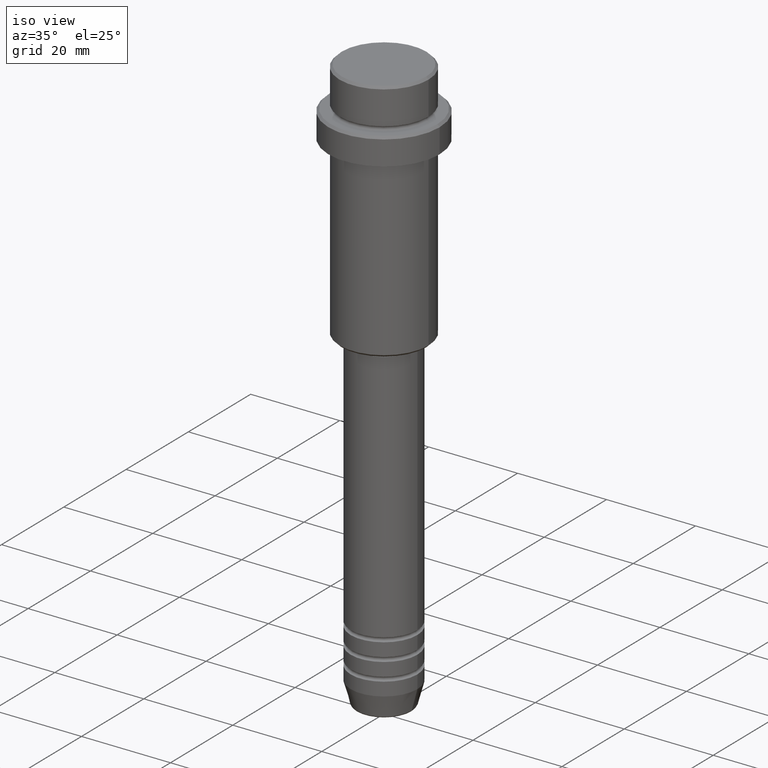
[diagram: clean part render]
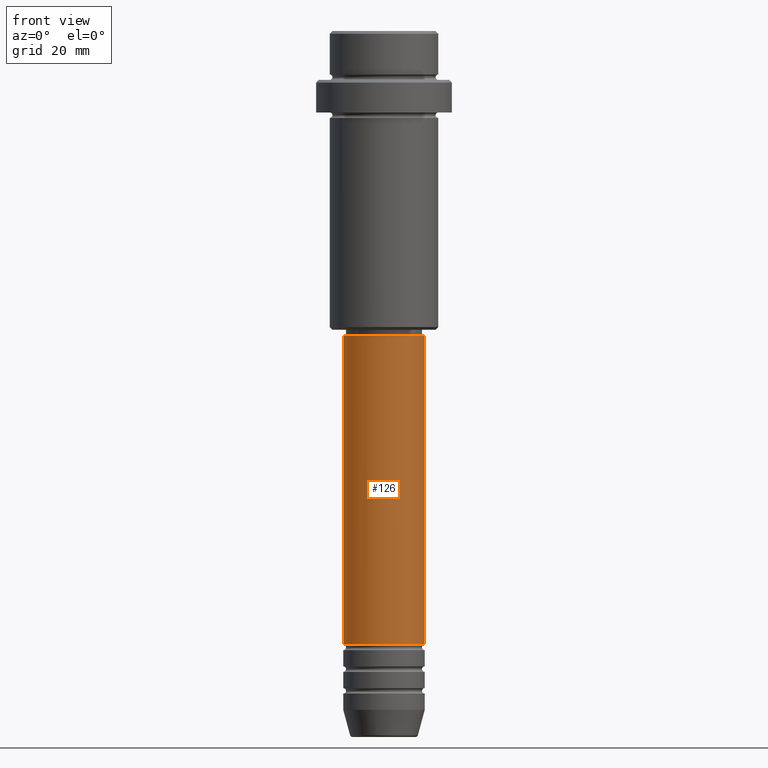
[diagram: tour spotlight — one face highlighted and labeled with its STEP entity id]
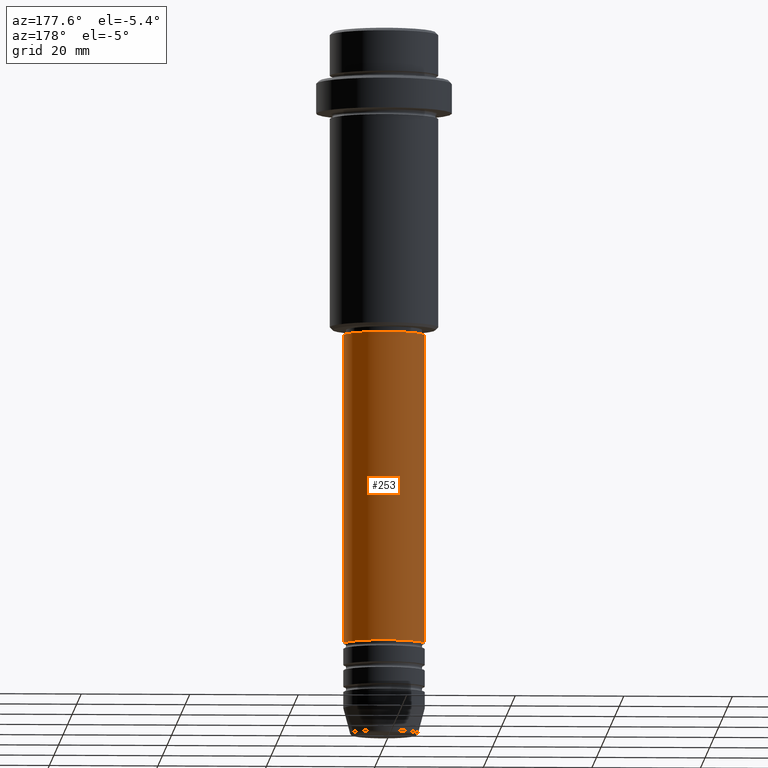
[diagram: tour spotlight — one face highlighted and labeled with its STEP entity id]
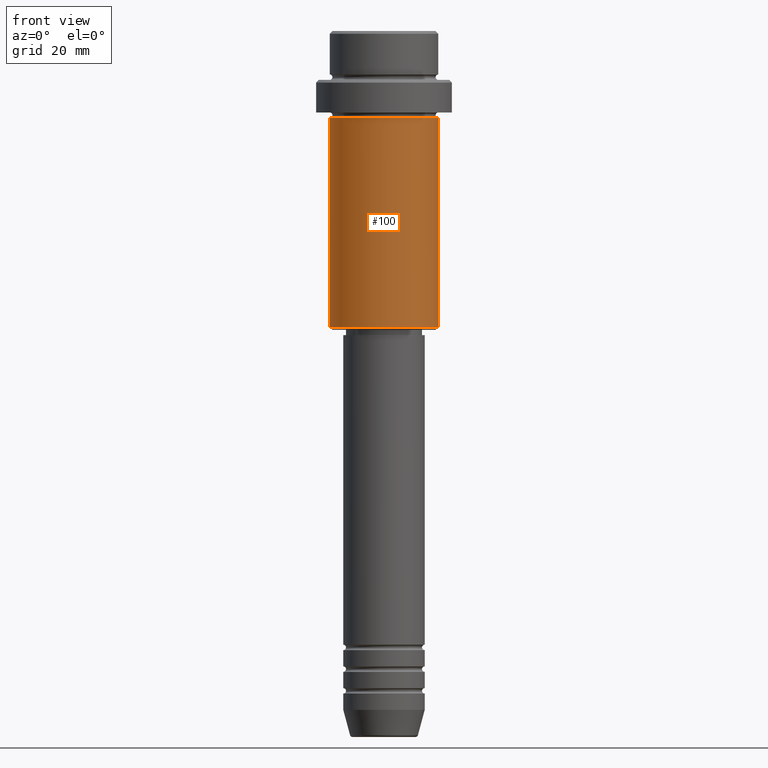
[diagram: tour spotlight — one face highlighted and labeled with its STEP entity id]
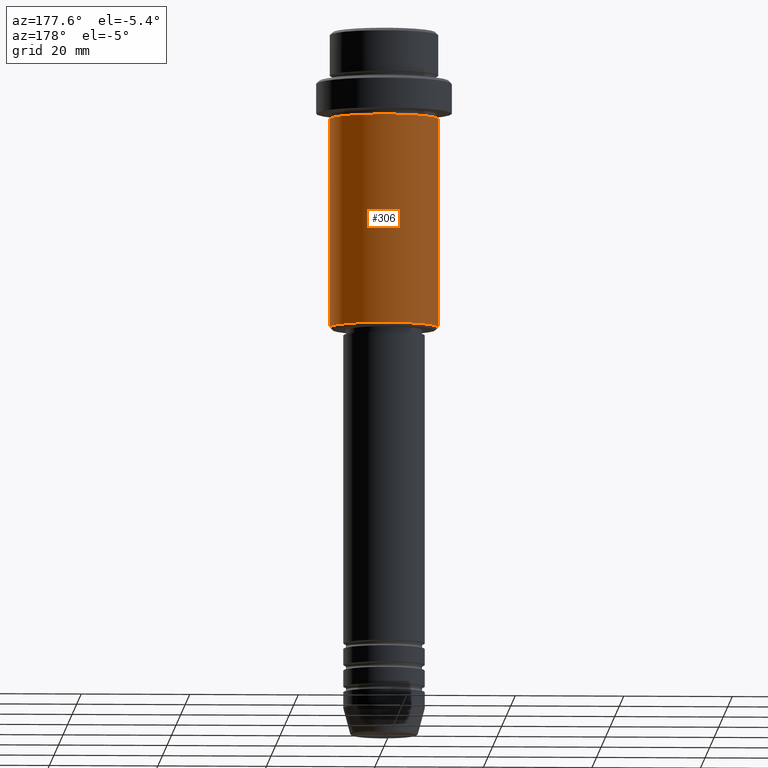
[diagram: tour spotlight — one face highlighted and labeled with its STEP entity id]
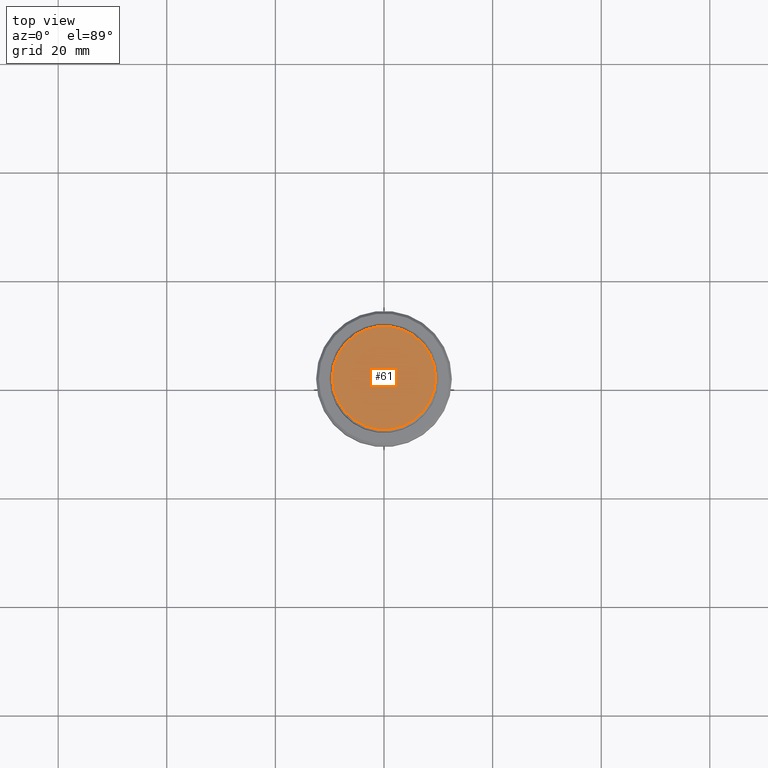
[diagram: tour spotlight — one face highlighted and labeled with its STEP entity id]
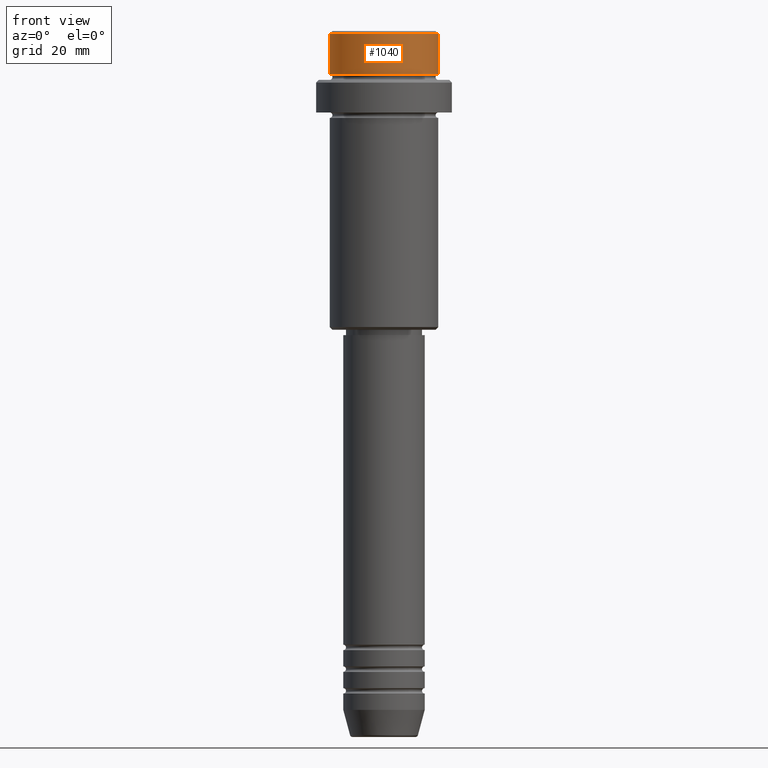
[diagram: tour spotlight — one face highlighted and labeled with its STEP entity id]
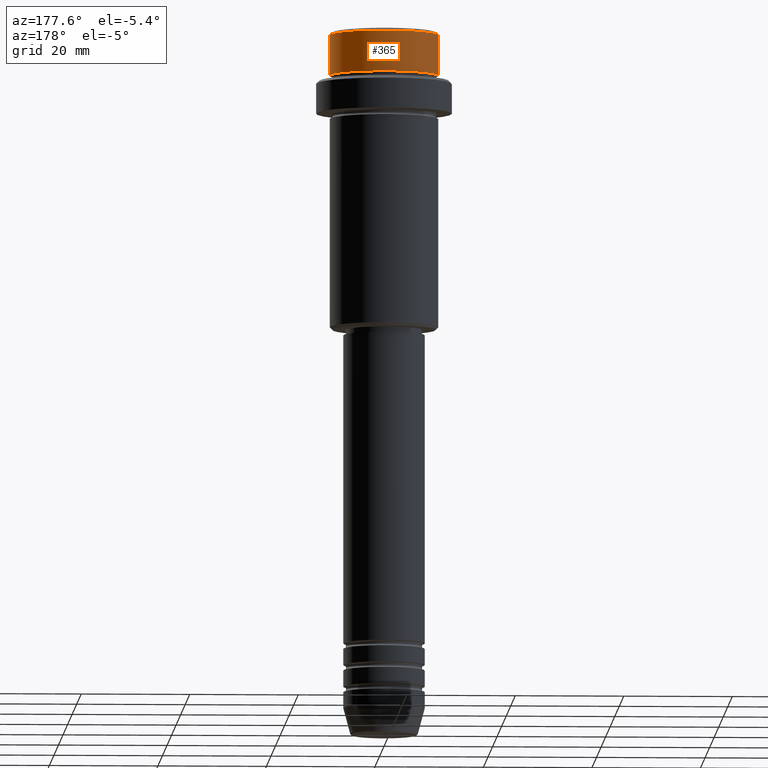
[diagram: tour spotlight — one face highlighted and labeled with its STEP entity id]
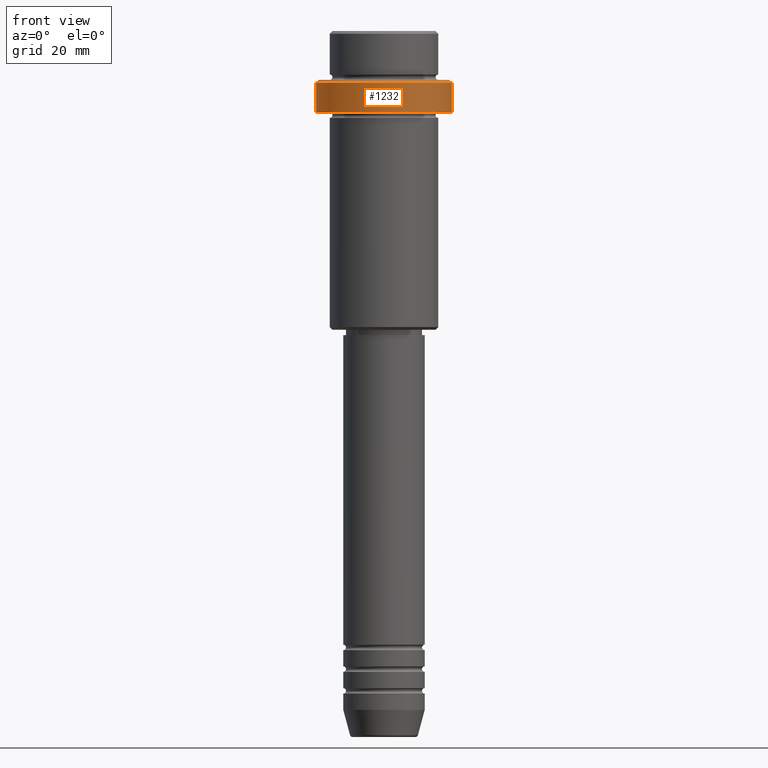
[diagram: tour spotlight — one face highlighted and labeled with its STEP entity id]
A machine part: a face-by-face anatomy tour. The part has 52 B-rep faces; the first image is the clean iso view, then the 8 largest visible faces are spotlighted one at a time (largest first), each with its STEP entity span.

Face 1 — front view, entity #126. In plain terms, the highlighted cylindrical surface (partial cylindrical patch) has radius 7.5 mm, axis along (-0, -0, 1).
Definition (entity closure, byte-faithful):
#10 = DIRECTION ( 'NONE',  ( -0.000000000000000000, -0.000000000000000000, 1.000000000000000000 ) ) ;
#51 = AXIS2_PLACEMENT_3D ( 'NONE', #596, #1247, #836 ) ;
#89 = LINE ( 'NONE', #432, #335 ) ;
#105 = DIRECTION ( 'NONE',  ( -0.000000000000000000, -0.000000000000000000, 1.000000000000000000 ) ) ;
#126 = ADVANCED_FACE ( 'NONE', ( #769 ), #662, .T. ) ;
#179 = VERTEX_POINT ( 'NONE', #968 ) ;
#219 = ORIENTED_EDGE ( 'NONE', *, *, #878, .F. ) ;
#248 = DIRECTION ( 'NONE',  ( -0.000000000000000000, -0.000000000000000000, 1.000000000000000000 ) ) ;
#308 = AXIS2_PLACEMENT_3D ( 'NONE', #1308, #10, #784 ) ;
#314 = CARTESIAN_POINT ( 'NONE',  ( 0.000000000000000000, 0.000000000000000000, 0.000000000000000000 ) ) ;
#335 = VECTOR ( 'NONE', #530, 1000.000000000000000 ) ;
#432 = CARTESIAN_POINT ( 'NONE',  ( -7.500000000000000000, 9.184850993605147944E-16, 0.000000000000000000 ) ) ;
#475 = ORIENTED_EDGE ( 'NONE', *, *, #1145, .T. ) ;
#482 = VERTEX_POINT ( 'NONE', #1190 ) ;
#488 = EDGE_CURVE ( 'NONE', #1399, #482, #89, .T. ) ;
#495 = CIRCLE ( 'NONE', #51, 7.500000000000000000 ) ;
#530 = DIRECTION ( 'NONE',  ( -0.000000000000000000, -0.000000000000000000, 1.000000000000000000 ) ) ;
#577 = VERTEX_POINT ( 'NONE', #967 ) ;
#596 = CARTESIAN_POINT ( 'NONE',  ( 0.000000000000000000, 0.000000000000000000, -55.99999999999997158 ) ) ;
#662 = CYLINDRICAL_SURFACE ( 'NONE', #944, 7.500000000000000000 ) ;
#769 = FACE_OUTER_BOUND ( 'NONE', #1257, .T. ) ;
#784 = DIRECTION ( 'NONE',  ( 1.000000000000000000, 0.000000000000000000, 0.000000000000000000 ) ) ;
#836 = DIRECTION ( 'NONE',  ( 1.000000000000000000, 0.000000000000000000, 0.000000000000000000 ) ) ;
#878 = EDGE_CURVE ( 'NONE', #482, #577, #495, .T. ) ;
#931 = VECTOR ( 'NONE', #248, 1000.000000000000000 ) ;
#944 = AXIS2_PLACEMENT_3D ( 'NONE', #314, #105, #974 ) ;
#967 = CARTESIAN_POINT ( 'NONE',  ( 7.500000000000000000, 0.000000000000000000, -55.99999999999997158 ) ) ;
#968 = CARTESIAN_POINT ( 'NONE',  ( 7.500000000000000000, 0.000000000000000000, -112.9999999999998721 ) ) ;
#974 = DIRECTION ( 'NONE',  ( 1.000000000000000000, 0.000000000000000000, 0.000000000000000000 ) ) ;
#1019 = CARTESIAN_POINT ( 'NONE',  ( -7.500000000000000000, 9.184850993605147944E-16, -112.9999999999998721 ) ) ;
#1043 = CIRCLE ( 'NONE', #308, 7.500000000000000000 ) ;
#1054 = ORIENTED_EDGE ( 'NONE', *, *, #488, .F. ) ;
#1063 = ORIENTED_EDGE ( 'NONE', *, *, #1295, .T. ) ;
#1145 = EDGE_CURVE ( 'NONE', #1399, #179, #1043, .T. ) ;
#1190 = CARTESIAN_POINT ( 'NONE',  ( -7.500000000000000000, 9.184850993605147944E-16, -55.99999999999997158 ) ) ;
#1223 = LINE ( 'NONE', #1253, #931 ) ;
#1247 = DIRECTION ( 'NONE',  ( -0.000000000000000000, -0.000000000000000000, 1.000000000000000000 ) ) ;
#1253 = CARTESIAN_POINT ( 'NONE',  ( 7.500000000000000000, 0.000000000000000000, 0.000000000000000000 ) ) ;
#1257 = EDGE_LOOP ( 'NONE', ( #1054, #475, #1063, #219 ) ) ;
#1295 = EDGE_CURVE ( 'NONE', #179, #577, #1223, .T. ) ;
#1308 = CARTESIAN_POINT ( 'NONE',  ( 0.000000000000000000, 0.000000000000000000, -112.9999999999998721 ) ) ;
#1399 = VERTEX_POINT ( 'NONE', #1019 ) ;

Face 2 — auxiliary view, entity #253. In plain terms, the highlighted cylindrical surface (partial cylindrical patch) has radius 7.5 mm, axis along (-0, -0, 1).
Definition (entity closure, byte-faithful):
#8 = EDGE_LOOP ( 'NONE', ( #1299, #975, #52, #902 ) ) ;
#17 = AXIS2_PLACEMENT_3D ( 'NONE', #684, #560, #776 ) ;
#47 = EDGE_CURVE ( 'NONE', #179, #1399, #829, .T. ) ;
#52 = ORIENTED_EDGE ( 'NONE', *, *, #1055, .F. ) ;
#89 = LINE ( 'NONE', #432, #335 ) ;
#179 = VERTEX_POINT ( 'NONE', #968 ) ;
#186 = DIRECTION ( 'NONE',  ( -0.000000000000000000, -0.000000000000000000, 1.000000000000000000 ) ) ;
#248 = DIRECTION ( 'NONE',  ( -0.000000000000000000, -0.000000000000000000, 1.000000000000000000 ) ) ;
#253 = ADVANCED_FACE ( 'NONE', ( #671 ), #1124, .T. ) ;
#319 = DIRECTION ( 'NONE',  ( -0.000000000000000000, -0.000000000000000000, 1.000000000000000000 ) ) ;
#335 = VECTOR ( 'NONE', #530, 1000.000000000000000 ) ;
#415 = CARTESIAN_POINT ( 'NONE',  ( 0.000000000000000000, 0.000000000000000000, -55.99999999999997158 ) ) ;
#432 = CARTESIAN_POINT ( 'NONE',  ( -7.500000000000000000, 9.184850993605147944E-16, 0.000000000000000000 ) ) ;
#433 = CARTESIAN_POINT ( 'NONE',  ( 0.000000000000000000, 0.000000000000000000, -112.9999999999998721 ) ) ;
#482 = VERTEX_POINT ( 'NONE', #1190 ) ;
#488 = EDGE_CURVE ( 'NONE', #1399, #482, #89, .T. ) ;
#530 = DIRECTION ( 'NONE',  ( -0.000000000000000000, -0.000000000000000000, 1.000000000000000000 ) ) ;
#560 = DIRECTION ( 'NONE',  ( -0.000000000000000000, -0.000000000000000000, 1.000000000000000000 ) ) ;
#577 = VERTEX_POINT ( 'NONE', #967 ) ;
#588 = CIRCLE ( 'NONE', #1237, 7.500000000000000000 ) ;
#619 = AXIS2_PLACEMENT_3D ( 'NONE', #433, #319, #1179 ) ;
#671 = FACE_OUTER_BOUND ( 'NONE', #8, .T. ) ;
#684 = CARTESIAN_POINT ( 'NONE',  ( 0.000000000000000000, 0.000000000000000000, 0.000000000000000000 ) ) ;
#776 = DIRECTION ( 'NONE',  ( 1.000000000000000000, 0.000000000000000000, 0.000000000000000000 ) ) ;
#829 = CIRCLE ( 'NONE', #619, 7.500000000000000000 ) ;
#902 = ORIENTED_EDGE ( 'NONE', *, *, #1295, .F. ) ;
#931 = VECTOR ( 'NONE', #248, 1000.000000000000000 ) ;
#967 = CARTESIAN_POINT ( 'NONE',  ( 7.500000000000000000, 0.000000000000000000, -55.99999999999997158 ) ) ;
#968 = CARTESIAN_POINT ( 'NONE',  ( 7.500000000000000000, 0.000000000000000000, -112.9999999999998721 ) ) ;
#975 = ORIENTED_EDGE ( 'NONE', *, *, #488, .T. ) ;
#1019 = CARTESIAN_POINT ( 'NONE',  ( -7.500000000000000000, 9.184850993605147944E-16, -112.9999999999998721 ) ) ;
#1055 = EDGE_CURVE ( 'NONE', #577, #482, #588, .T. ) ;
#1124 = CYLINDRICAL_SURFACE ( 'NONE', #17, 7.500000000000000000 ) ;
#1161 = DIRECTION ( 'NONE',  ( 1.000000000000000000, 0.000000000000000000, 0.000000000000000000 ) ) ;
#1179 = DIRECTION ( 'NONE',  ( 1.000000000000000000, 0.000000000000000000, 0.000000000000000000 ) ) ;
#1190 = CARTESIAN_POINT ( 'NONE',  ( -7.500000000000000000, 9.184850993605147944E-16, -55.99999999999997158 ) ) ;
#1223 = LINE ( 'NONE', #1253, #931 ) ;
#1237 = AXIS2_PLACEMENT_3D ( 'NONE', #415, #186, #1161 ) ;
#1253 = CARTESIAN_POINT ( 'NONE',  ( 7.500000000000000000, 0.000000000000000000, 0.000000000000000000 ) ) ;
#1295 = EDGE_CURVE ( 'NONE', #179, #577, #1223, .T. ) ;
#1299 = ORIENTED_EDGE ( 'NONE', *, *, #47, .T. ) ;
#1399 = VERTEX_POINT ( 'NONE', #1019 ) ;

Face 3 — front view, entity #100. In plain terms, the highlighted cylindrical surface (partial cylindrical patch) has radius 10 mm, axis along (-0, -0, 1).
Definition (entity closure, byte-faithful):
#30 = VECTOR ( 'NONE', #1395, 1000.000000000000000 ) ;
#60 = CARTESIAN_POINT ( 'NONE',  ( 10.00000000000000000, 0.000000000000000000, -54.49999999999999289 ) ) ;
#80 = CARTESIAN_POINT ( 'NONE',  ( 0.000000000000000000, 0.000000000000000000, -54.49999999999999289 ) ) ;
#91 = DIRECTION ( 'NONE',  ( -0.000000000000000000, -0.000000000000000000, 1.000000000000000000 ) ) ;
#95 = CARTESIAN_POINT ( 'NONE',  ( 10.00000000000000000, 0.000000000000000000, 0.000000000000000000 ) ) ;
#100 = ADVANCED_FACE ( 'NONE', ( #875 ), #1272, .T. ) ;
#171 = VERTEX_POINT ( 'NONE', #632 ) ;
#201 = AXIS2_PLACEMENT_3D ( 'NONE', #992, #91, #218 ) ;
#218 = DIRECTION ( 'NONE',  ( 1.000000000000000000, 0.000000000000000000, 0.000000000000000000 ) ) ;
#244 = EDGE_CURVE ( 'NONE', #518, #456, #1224, .T. ) ;
#255 = DIRECTION ( 'NONE',  ( 1.000000000000000000, 0.000000000000000000, 0.000000000000000000 ) ) ;
#258 = DIRECTION ( 'NONE',  ( -0.000000000000000000, -0.000000000000000000, 1.000000000000000000 ) ) ;
#292 = CARTESIAN_POINT ( 'NONE',  ( 10.00000000000000000, 0.000000000000000000, -16.00000000000000000 ) ) ;
#303 = CARTESIAN_POINT ( 'NONE',  ( -10.00000000000000000, 1.224646799147353256E-15, -16.00000000000000000 ) ) ;
#380 = CARTESIAN_POINT ( 'NONE',  ( -10.00000000000000000, 1.224646799147353256E-15, 0.000000000000000000 ) ) ;
#400 = AXIS2_PLACEMENT_3D ( 'NONE', #1205, #459, #255 ) ;
#448 = AXIS2_PLACEMENT_3D ( 'NONE', #80, #851, #956 ) ;
#456 = VERTEX_POINT ( 'NONE', #292 ) ;
#459 = DIRECTION ( 'NONE',  ( -0.000000000000000000, -0.000000000000000000, 1.000000000000000000 ) ) ;
#478 = VERTEX_POINT ( 'NONE', #60 ) ;
#502 = EDGE_CURVE ( 'NONE', #171, #478, #1068, .T. ) ;
#510 = EDGE_CURVE ( 'NONE', #478, #456, #972, .T. ) ;
#518 = VERTEX_POINT ( 'NONE', #303 ) ;
#583 = ORIENTED_EDGE ( 'NONE', *, *, #510, .T. ) ;
#632 = CARTESIAN_POINT ( 'NONE',  ( -10.00000000000000000, 1.224646799147353256E-15, -54.49999999999999289 ) ) ;
#634 = ORIENTED_EDGE ( 'NONE', *, *, #244, .F. ) ;
#697 = VECTOR ( 'NONE', #258, 1000.000000000000000 ) ;
#743 = ORIENTED_EDGE ( 'NONE', *, *, #1222, .F. ) ;
#845 = EDGE_LOOP ( 'NONE', ( #743, #1388, #583, #634 ) ) ;
#851 = DIRECTION ( 'NONE',  ( -0.000000000000000000, -0.000000000000000000, 1.000000000000000000 ) ) ;
#875 = FACE_OUTER_BOUND ( 'NONE', #845, .T. ) ;
#956 = DIRECTION ( 'NONE',  ( -1.000000000000000000, 0.000000000000000000, 0.000000000000000000 ) ) ;
#972 = LINE ( 'NONE', #95, #30 ) ;
#992 = CARTESIAN_POINT ( 'NONE',  ( 0.000000000000000000, 0.000000000000000000, 0.000000000000000000 ) ) ;
#1068 = CIRCLE ( 'NONE', #448, 10.00000000000000000 ) ;
#1137 = LINE ( 'NONE', #380, #697 ) ;
#1205 = CARTESIAN_POINT ( 'NONE',  ( 0.000000000000000000, 0.000000000000000000, -16.00000000000000000 ) ) ;
#1222 = EDGE_CURVE ( 'NONE', #171, #518, #1137, .T. ) ;
#1224 = CIRCLE ( 'NONE', #400, 10.00000000000000000 ) ;
#1272 = CYLINDRICAL_SURFACE ( 'NONE', #201, 10.00000000000000000 ) ;
#1388 = ORIENTED_EDGE ( 'NONE', *, *, #502, .T. ) ;
#1395 = DIRECTION ( 'NONE',  ( -0.000000000000000000, -0.000000000000000000, 1.000000000000000000 ) ) ;

Face 4 — auxiliary view, entity #306. In plain terms, the highlighted cylindrical surface (partial cylindrical patch) has radius 10 mm, axis along (-0, -0, 1).
Definition (entity closure, byte-faithful):
#20 = DIRECTION ( 'NONE',  ( 1.000000000000000000, 0.000000000000000000, 0.000000000000000000 ) ) ;
#30 = VECTOR ( 'NONE', #1395, 1000.000000000000000 ) ;
#60 = CARTESIAN_POINT ( 'NONE',  ( 10.00000000000000000, 0.000000000000000000, -54.49999999999999289 ) ) ;
#95 = CARTESIAN_POINT ( 'NONE',  ( 10.00000000000000000, 0.000000000000000000, 0.000000000000000000 ) ) ;
#128 = DIRECTION ( 'NONE',  ( -0.000000000000000000, -0.000000000000000000, 1.000000000000000000 ) ) ;
#153 = CARTESIAN_POINT ( 'NONE',  ( 0.000000000000000000, 0.000000000000000000, -54.49999999999999289 ) ) ;
#161 = AXIS2_PLACEMENT_3D ( 'NONE', #1115, #128, #20 ) ;
#170 = AXIS2_PLACEMENT_3D ( 'NONE', #949, #175, #367 ) ;
#171 = VERTEX_POINT ( 'NONE', #632 ) ;
#175 = DIRECTION ( 'NONE',  ( -0.000000000000000000, -0.000000000000000000, 1.000000000000000000 ) ) ;
#258 = DIRECTION ( 'NONE',  ( -0.000000000000000000, -0.000000000000000000, 1.000000000000000000 ) ) ;
#275 = DIRECTION ( 'NONE',  ( -0.000000000000000000, -0.000000000000000000, 1.000000000000000000 ) ) ;
#292 = CARTESIAN_POINT ( 'NONE',  ( 10.00000000000000000, 0.000000000000000000, -16.00000000000000000 ) ) ;
#303 = CARTESIAN_POINT ( 'NONE',  ( -10.00000000000000000, 1.224646799147353256E-15, -16.00000000000000000 ) ) ;
#306 = ADVANCED_FACE ( 'NONE', ( #454 ), #900, .T. ) ;
#367 = DIRECTION ( 'NONE',  ( 1.000000000000000000, 0.000000000000000000, 0.000000000000000000 ) ) ;
#380 = CARTESIAN_POINT ( 'NONE',  ( -10.00000000000000000, 1.224646799147353256E-15, 0.000000000000000000 ) ) ;
#454 = FACE_OUTER_BOUND ( 'NONE', #906, .T. ) ;
#456 = VERTEX_POINT ( 'NONE', #292 ) ;
#460 = ORIENTED_EDGE ( 'NONE', *, *, #510, .F. ) ;
#462 = EDGE_CURVE ( 'NONE', #478, #171, #1002, .T. ) ;
#478 = VERTEX_POINT ( 'NONE', #60 ) ;
#481 = DIRECTION ( 'NONE',  ( -1.000000000000000000, 0.000000000000000000, 0.000000000000000000 ) ) ;
#510 = EDGE_CURVE ( 'NONE', #478, #456, #972, .T. ) ;
#518 = VERTEX_POINT ( 'NONE', #303 ) ;
#632 = CARTESIAN_POINT ( 'NONE',  ( -10.00000000000000000, 1.224646799147353256E-15, -54.49999999999999289 ) ) ;
#697 = VECTOR ( 'NONE', #258, 1000.000000000000000 ) ;
#707 = ORIENTED_EDGE ( 'NONE', *, *, #901, .F. ) ;
#753 = AXIS2_PLACEMENT_3D ( 'NONE', #153, #275, #481 ) ;
#895 = ORIENTED_EDGE ( 'NONE', *, *, #1222, .T. ) ;
#900 = CYLINDRICAL_SURFACE ( 'NONE', #161, 10.00000000000000000 ) ;
#901 = EDGE_CURVE ( 'NONE', #456, #518, #937, .T. ) ;
#906 = EDGE_LOOP ( 'NONE', ( #921, #895, #707, #460 ) ) ;
#921 = ORIENTED_EDGE ( 'NONE', *, *, #462, .T. ) ;
#937 = CIRCLE ( 'NONE', #170, 10.00000000000000000 ) ;
#949 = CARTESIAN_POINT ( 'NONE',  ( 0.000000000000000000, 0.000000000000000000, -16.00000000000000000 ) ) ;
#972 = LINE ( 'NONE', #95, #30 ) ;
#1002 = CIRCLE ( 'NONE', #753, 10.00000000000000000 ) ;
#1115 = CARTESIAN_POINT ( 'NONE',  ( 0.000000000000000000, 0.000000000000000000, 0.000000000000000000 ) ) ;
#1137 = LINE ( 'NONE', #380, #697 ) ;
#1222 = EDGE_CURVE ( 'NONE', #171, #518, #1137, .T. ) ;
#1395 = DIRECTION ( 'NONE',  ( -0.000000000000000000, -0.000000000000000000, 1.000000000000000000 ) ) ;

Face 5 — top view, entity #61. In plain terms, the highlighted planar face has unit normal (0, -0, 1).
Definition (entity closure, byte-faithful):
#61 = ADVANCED_FACE ( 'NONE', ( #763 ), #552, .T. ) ;
#129 = AXIS2_PLACEMENT_3D ( 'NONE', #299, #1067, #209 ) ;
#163 = EDGE_LOOP ( 'NONE', ( #211, #1250 ) ) ;
#209 = DIRECTION ( 'NONE',  ( 1.000000000000000000, 0.000000000000000000, 0.000000000000000000 ) ) ;
#211 = ORIENTED_EDGE ( 'NONE', *, *, #1003, .T. ) ;
#295 = DIRECTION ( 'NONE',  ( 1.000000000000000000, 0.000000000000000000, 0.000000000000000000 ) ) ;
#299 = CARTESIAN_POINT ( 'NONE',  ( 0.000000000000000000, 0.000000000000000000, 0.000000000000000000 ) ) ;
#364 = DIRECTION ( 'NONE',  ( 1.000000000000000000, 0.000000000000000000, 0.000000000000000000 ) ) ;
#487 = CARTESIAN_POINT ( 'NONE',  ( -9.500000000000008882, 0.000000000000000000, 0.000000000000000000 ) ) ;
#521 = AXIS2_PLACEMENT_3D ( 'NONE', #1402, #660, #364 ) ;
#552 = PLANE ( 'NONE',  #129 ) ;
#563 = CIRCLE ( 'NONE', #1280, 9.500000000000008882 ) ;
#660 = DIRECTION ( 'NONE',  ( -0.000000000000000000, -0.000000000000000000, 1.000000000000000000 ) ) ;
#736 = DIRECTION ( 'NONE',  ( -0.000000000000000000, -0.000000000000000000, 1.000000000000000000 ) ) ;
#763 = FACE_OUTER_BOUND ( 'NONE', #163, .T. ) ;
#798 = VERTEX_POINT ( 'NONE', #487 ) ;
#1003 = EDGE_CURVE ( 'NONE', #798, #1006, #563, .T. ) ;
#1006 = VERTEX_POINT ( 'NONE', #1184 ) ;
#1067 = DIRECTION ( 'NONE',  ( 0.000000000000000000, -0.000000000000000000, 1.000000000000000000 ) ) ;
#1184 = CARTESIAN_POINT ( 'NONE',  ( 9.500000000000008882, 1.194030629168669864E-15, 0.000000000000000000 ) ) ;
#1250 = ORIENTED_EDGE ( 'NONE', *, *, #1390, .T. ) ;
#1264 = CIRCLE ( 'NONE', #521, 9.500000000000008882 ) ;
#1280 = AXIS2_PLACEMENT_3D ( 'NONE', #1372, #736, #295 ) ;
#1372 = CARTESIAN_POINT ( 'NONE',  ( 0.000000000000000000, 0.000000000000000000, 0.000000000000000000 ) ) ;
#1390 = EDGE_CURVE ( 'NONE', #1006, #798, #1264, .T. ) ;
#1402 = CARTESIAN_POINT ( 'NONE',  ( 0.000000000000000000, 0.000000000000000000, 0.000000000000000000 ) ) ;

Face 6 — front view, entity #1040. In plain terms, the highlighted cylindrical surface (partial cylindrical patch) has radius 10 mm, axis along (-0, -0, 1).
Definition (entity closure, byte-faithful):
#53 = CIRCLE ( 'NONE', #519, 9.999999999999998224 ) ;
#56 = AXIS2_PLACEMENT_3D ( 'NONE', #202, #1105, #235 ) ;
#90 = EDGE_CURVE ( 'NONE', #884, #1122, #197, .T. ) ;
#197 = LINE ( 'NONE', #547, #574 ) ;
#202 = CARTESIAN_POINT ( 'NONE',  ( 0.000000000000000000, 0.000000000000000000, -0.4999999999999831246 ) ) ;
#216 = CARTESIAN_POINT ( 'NONE',  ( -9.999999999999998224, 1.224646799147353059E-15, 0.000000000000000000 ) ) ;
#235 = DIRECTION ( 'NONE',  ( 1.000000000000000000, 0.000000000000000000, 0.000000000000000000 ) ) ;
#286 = ORIENTED_EDGE ( 'NONE', *, *, #1097, .T. ) ;
#324 = DIRECTION ( 'NONE',  ( -0.000000000000000000, -0.000000000000000000, 1.000000000000000000 ) ) ;
#326 = ORIENTED_EDGE ( 'NONE', *, *, #480, .F. ) ;
#429 = DIRECTION ( 'NONE',  ( -0.000000000000000000, -0.000000000000000000, 1.000000000000000000 ) ) ;
#480 = EDGE_CURVE ( 'NONE', #947, #718, #1281, .T. ) ;
#494 = CIRCLE ( 'NONE', #56, 9.999999999999998224 ) ;
#519 = AXIS2_PLACEMENT_3D ( 'NONE', #1208, #994, #1014 ) ;
#534 = ORIENTED_EDGE ( 'NONE', *, *, #636, .T. ) ;
#543 = CYLINDRICAL_SURFACE ( 'NONE', #1194, 9.999999999999998224 ) ;
#547 = CARTESIAN_POINT ( 'NONE',  ( 9.999999999999998224, 0.000000000000000000, 0.000000000000000000 ) ) ;
#574 = VECTOR ( 'NONE', #640, 1000.000000000000000 ) ;
#636 = EDGE_CURVE ( 'NONE', #1122, #718, #494, .T. ) ;
#640 = DIRECTION ( 'NONE',  ( -0.000000000000000000, -0.000000000000000000, 1.000000000000000000 ) ) ;
#644 = CARTESIAN_POINT ( 'NONE',  ( -9.999999999999998224, 1.224646799147353059E-15, -7.999999999999998224 ) ) ;
#685 = EDGE_LOOP ( 'NONE', ( #326, #286, #915, #534 ) ) ;
#718 = VERTEX_POINT ( 'NONE', #1004 ) ;
#752 = VECTOR ( 'NONE', #324, 1000.000000000000000 ) ;
#849 = FACE_OUTER_BOUND ( 'NONE', #685, .T. ) ;
#884 = VERTEX_POINT ( 'NONE', #1023 ) ;
#915 = ORIENTED_EDGE ( 'NONE', *, *, #90, .T. ) ;
#947 = VERTEX_POINT ( 'NONE', #644 ) ;
#994 = DIRECTION ( 'NONE',  ( -0.000000000000000000, -0.000000000000000000, 1.000000000000000000 ) ) ;
#1004 = CARTESIAN_POINT ( 'NONE',  ( -9.999999999999998224, 1.224646799147353059E-15, -0.4999999999999831246 ) ) ;
#1014 = DIRECTION ( 'NONE',  ( 1.000000000000000000, 0.000000000000000000, 0.000000000000000000 ) ) ;
#1023 = CARTESIAN_POINT ( 'NONE',  ( 9.999999999999998224, 0.000000000000000000, -7.999999999999998224 ) ) ;
#1040 = ADVANCED_FACE ( 'NONE', ( #849 ), #543, .T. ) ;
#1097 = EDGE_CURVE ( 'NONE', #947, #884, #53, .T. ) ;
#1105 = DIRECTION ( 'NONE',  ( 0.000000000000000000, 0.000000000000000000, -1.000000000000000000 ) ) ;
#1117 = CARTESIAN_POINT ( 'NONE',  ( 9.999999999999998224, 0.000000000000000000, -0.4999999999999831246 ) ) ;
#1122 = VERTEX_POINT ( 'NONE', #1117 ) ;
#1194 = AXIS2_PLACEMENT_3D ( 'NONE', #1401, #429, #1386 ) ;
#1208 = CARTESIAN_POINT ( 'NONE',  ( 0.000000000000000000, 0.000000000000000000, -7.999999999999998224 ) ) ;
#1281 = LINE ( 'NONE', #216, #752 ) ;
#1386 = DIRECTION ( 'NONE',  ( 1.000000000000000000, 0.000000000000000000, 0.000000000000000000 ) ) ;
#1401 = CARTESIAN_POINT ( 'NONE',  ( 0.000000000000000000, 0.000000000000000000, 0.000000000000000000 ) ) ;

Face 7 — auxiliary view, entity #365. In plain terms, the highlighted cylindrical surface (partial cylindrical patch) has radius 10 mm, axis along (-0, -0, 1).
Definition (entity closure, byte-faithful):
#90 = EDGE_CURVE ( 'NONE', #884, #1122, #197, .T. ) ;
#182 = FACE_OUTER_BOUND ( 'NONE', #210, .T. ) ;
#197 = LINE ( 'NONE', #547, #574 ) ;
#210 = EDGE_LOOP ( 'NONE', ( #649, #598, #618, #1181 ) ) ;
#216 = CARTESIAN_POINT ( 'NONE',  ( -9.999999999999998224, 1.224646799147353059E-15, 0.000000000000000000 ) ) ;
#270 = DIRECTION ( 'NONE',  ( -0.000000000000000000, -0.000000000000000000, 1.000000000000000000 ) ) ;
#288 = CARTESIAN_POINT ( 'NONE',  ( 0.000000000000000000, 0.000000000000000000, -7.999999999999998224 ) ) ;
#290 = DIRECTION ( 'NONE',  ( 0.000000000000000000, 0.000000000000000000, -1.000000000000000000 ) ) ;
#324 = DIRECTION ( 'NONE',  ( -0.000000000000000000, -0.000000000000000000, 1.000000000000000000 ) ) ;
#365 = ADVANCED_FACE ( 'NONE', ( #182 ), #1156, .T. ) ;
#403 = CIRCLE ( 'NONE', #867, 9.999999999999998224 ) ;
#480 = EDGE_CURVE ( 'NONE', #947, #718, #1281, .T. ) ;
#493 = CIRCLE ( 'NONE', #870, 9.999999999999998224 ) ;
#547 = CARTESIAN_POINT ( 'NONE',  ( 9.999999999999998224, 0.000000000000000000, 0.000000000000000000 ) ) ;
#574 = VECTOR ( 'NONE', #640, 1000.000000000000000 ) ;
#597 = DIRECTION ( 'NONE',  ( 1.000000000000000000, 0.000000000000000000, 0.000000000000000000 ) ) ;
#598 = ORIENTED_EDGE ( 'NONE', *, *, #480, .T. ) ;
#618 = ORIENTED_EDGE ( 'NONE', *, *, #1044, .T. ) ;
#621 = DIRECTION ( 'NONE',  ( -0.000000000000000000, -0.000000000000000000, 1.000000000000000000 ) ) ;
#640 = DIRECTION ( 'NONE',  ( -0.000000000000000000, -0.000000000000000000, 1.000000000000000000 ) ) ;
#644 = CARTESIAN_POINT ( 'NONE',  ( -9.999999999999998224, 1.224646799147353059E-15, -7.999999999999998224 ) ) ;
#649 = ORIENTED_EDGE ( 'NONE', *, *, #1380, .T. ) ;
#718 = VERTEX_POINT ( 'NONE', #1004 ) ;
#752 = VECTOR ( 'NONE', #324, 1000.000000000000000 ) ;
#867 = AXIS2_PLACEMENT_3D ( 'NONE', #1261, #290, #1270 ) ;
#870 = AXIS2_PLACEMENT_3D ( 'NONE', #288, #621, #948 ) ;
#884 = VERTEX_POINT ( 'NONE', #1023 ) ;
#947 = VERTEX_POINT ( 'NONE', #644 ) ;
#948 = DIRECTION ( 'NONE',  ( 1.000000000000000000, 0.000000000000000000, 0.000000000000000000 ) ) ;
#1004 = CARTESIAN_POINT ( 'NONE',  ( -9.999999999999998224, 1.224646799147353059E-15, -0.4999999999999831246 ) ) ;
#1023 = CARTESIAN_POINT ( 'NONE',  ( 9.999999999999998224, 0.000000000000000000, -7.999999999999998224 ) ) ;
#1044 = EDGE_CURVE ( 'NONE', #718, #1122, #403, .T. ) ;
#1117 = CARTESIAN_POINT ( 'NONE',  ( 9.999999999999998224, 0.000000000000000000, -0.4999999999999831246 ) ) ;
#1122 = VERTEX_POINT ( 'NONE', #1117 ) ;
#1156 = CYLINDRICAL_SURFACE ( 'NONE', #1351, 9.999999999999998224 ) ;
#1162 = CARTESIAN_POINT ( 'NONE',  ( 0.000000000000000000, 0.000000000000000000, 0.000000000000000000 ) ) ;
#1181 = ORIENTED_EDGE ( 'NONE', *, *, #90, .F. ) ;
#1261 = CARTESIAN_POINT ( 'NONE',  ( 0.000000000000000000, 0.000000000000000000, -0.4999999999999831246 ) ) ;
#1270 = DIRECTION ( 'NONE',  ( 1.000000000000000000, 0.000000000000000000, 0.000000000000000000 ) ) ;
#1281 = LINE ( 'NONE', #216, #752 ) ;
#1351 = AXIS2_PLACEMENT_3D ( 'NONE', #1162, #270, #597 ) ;
#1380 = EDGE_CURVE ( 'NONE', #884, #947, #493, .T. ) ;

Face 8 — front view, entity #1232. In plain terms, the highlighted cylindrical surface (partial cylindrical patch) has radius 12.5 mm, axis along (-0, -0, 1).
Definition (entity closure, byte-faithful):
#4 = CIRCLE ( 'NONE', #353, 12.50000000000000000 ) ;
#11 = CARTESIAN_POINT ( 'NONE',  ( -12.50000000000000000, 1.530808498934191521E-15, 0.000000000000000000 ) ) ;
#75 = VERTEX_POINT ( 'NONE', #883 ) ;
#120 = CIRCLE ( 'NONE', #933, 12.50000000000000000 ) ;
#121 = ORIENTED_EDGE ( 'NONE', *, *, #721, .F. ) ;
#141 = DIRECTION ( 'NONE',  ( -0.000000000000000000, -0.000000000000000000, 1.000000000000000000 ) ) ;
#156 = VERTEX_POINT ( 'NONE', #741 ) ;
#159 = CARTESIAN_POINT ( 'NONE',  ( -12.50000000000000000, 1.530808498934191521E-15, -9.499999999999978684 ) ) ;
#172 = AXIS2_PLACEMENT_3D ( 'NONE', #825, #141, #173 ) ;
#173 = DIRECTION ( 'NONE',  ( 1.000000000000000000, 0.000000000000000000, 0.000000000000000000 ) ) ;
#196 = VECTOR ( 'NONE', #942, 1000.000000000000000 ) ;
#212 = DIRECTION ( 'NONE',  ( 0.000000000000000000, 0.000000000000000000, -1.000000000000000000 ) ) ;
#274 = FACE_OUTER_BOUND ( 'NONE', #1361, .T. ) ;
#353 = AXIS2_PLACEMENT_3D ( 'NONE', #886, #212, #674 ) ;
#373 = LINE ( 'NONE', #819, #196 ) ;
#406 = EDGE_CURVE ( 'NONE', #75, #156, #373, .T. ) ;
#439 = ORIENTED_EDGE ( 'NONE', *, *, #406, .T. ) ;
#497 = CYLINDRICAL_SURFACE ( 'NONE', #172, 12.50000000000000000 ) ;
#557 = EDGE_CURVE ( 'NONE', #1081, #75, #120, .T. ) ;
#665 = CARTESIAN_POINT ( 'NONE',  ( -12.50000000000000000, 1.530808498934191521E-15, -15.00000000000000178 ) ) ;
#674 = DIRECTION ( 'NONE',  ( 1.000000000000000000, 0.000000000000000000, 0.000000000000000000 ) ) ;
#721 = EDGE_CURVE ( 'NONE', #1081, #848, #904, .T. ) ;
#741 = CARTESIAN_POINT ( 'NONE',  ( 12.50000000000000000, 0.000000000000000000, -9.499999999999978684 ) ) ;
#762 = DIRECTION ( 'NONE',  ( 1.000000000000000000, 0.000000000000000000, 0.000000000000000000 ) ) ;
#819 = CARTESIAN_POINT ( 'NONE',  ( 12.50000000000000000, 0.000000000000000000, 0.000000000000000000 ) ) ;
#825 = CARTESIAN_POINT ( 'NONE',  ( 0.000000000000000000, 0.000000000000000000, 0.000000000000000000 ) ) ;
#848 = VERTEX_POINT ( 'NONE', #159 ) ;
#883 = CARTESIAN_POINT ( 'NONE',  ( 12.50000000000000000, 0.000000000000000000, -15.00000000000000178 ) ) ;
#886 = CARTESIAN_POINT ( 'NONE',  ( 0.000000000000000000, 0.000000000000000000, -9.499999999999978684 ) ) ;
#904 = LINE ( 'NONE', #11, #1321 ) ;
#933 = AXIS2_PLACEMENT_3D ( 'NONE', #985, #1403, #762 ) ;
#942 = DIRECTION ( 'NONE',  ( -0.000000000000000000, -0.000000000000000000, 1.000000000000000000 ) ) ;
#985 = CARTESIAN_POINT ( 'NONE',  ( 0.000000000000000000, 0.000000000000000000, -15.00000000000000178 ) ) ;
#1081 = VERTEX_POINT ( 'NONE', #665 ) ;
#1134 = ORIENTED_EDGE ( 'NONE', *, *, #1142, .T. ) ;
#1142 = EDGE_CURVE ( 'NONE', #156, #848, #4, .T. ) ;
#1204 = DIRECTION ( 'NONE',  ( -0.000000000000000000, -0.000000000000000000, 1.000000000000000000 ) ) ;
#1232 = ADVANCED_FACE ( 'NONE', ( #274 ), #497, .T. ) ;
#1252 = ORIENTED_EDGE ( 'NONE', *, *, #557, .T. ) ;
#1321 = VECTOR ( 'NONE', #1204, 1000.000000000000000 ) ;
#1361 = EDGE_LOOP ( 'NONE', ( #121, #1252, #439, #1134 ) ) ;
#1403 = DIRECTION ( 'NONE',  ( -0.000000000000000000, -0.000000000000000000, 1.000000000000000000 ) ) ;